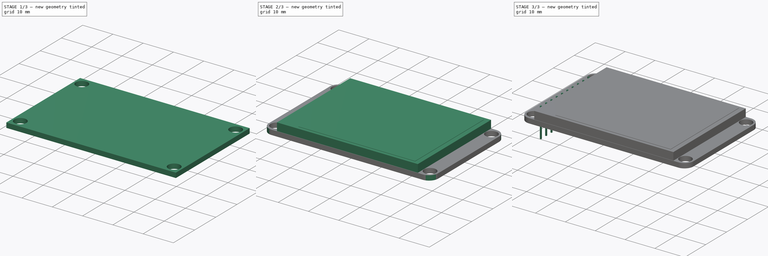
[diagram: build sequence overview — one tinted view per stage of 3, left to right]
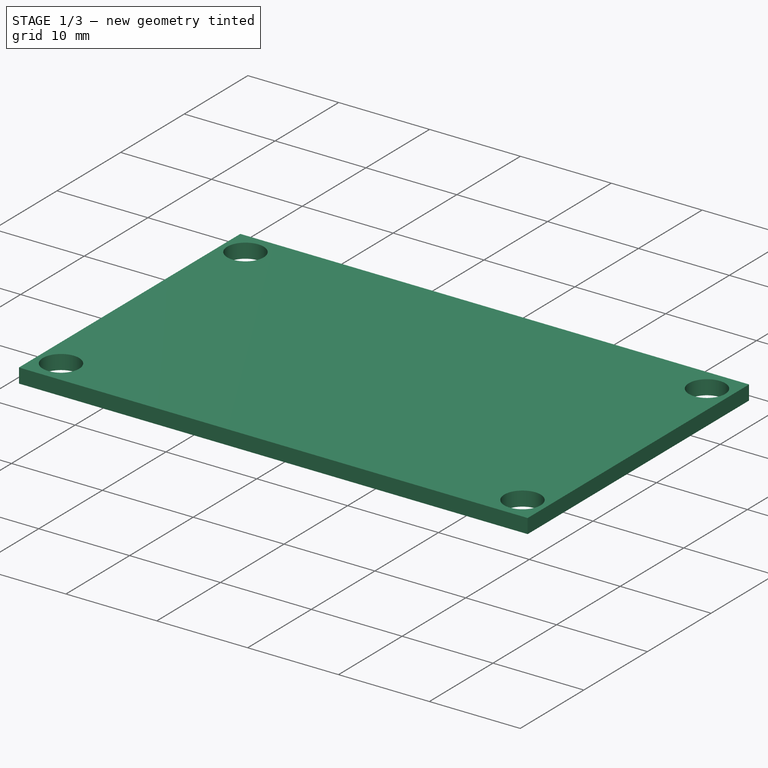
[diagram: stage 1 of 3 — iso view after this stage's code; geometry added in this stage tinted green]
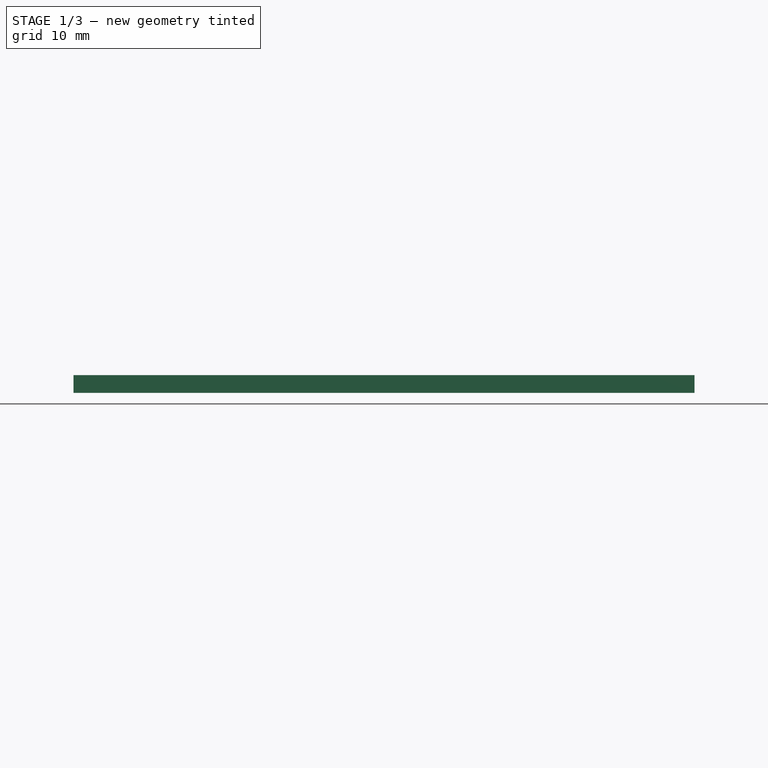
[diagram: stage 1 of 3 — front view after this stage's code; geometry added in this stage tinted green]
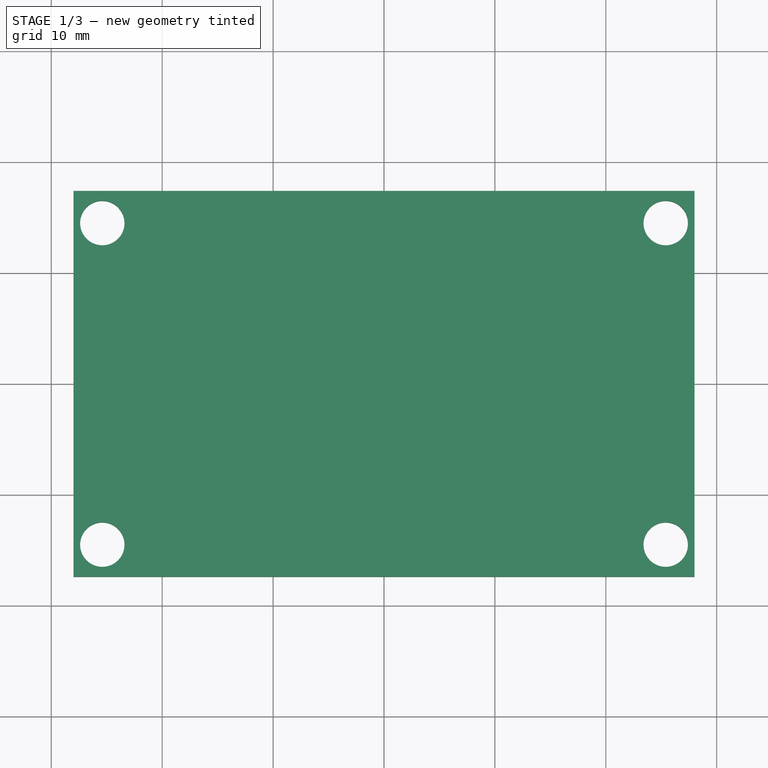
[diagram: stage 1 of 3 — top view after this stage's code; geometry added in this stage tinted green]
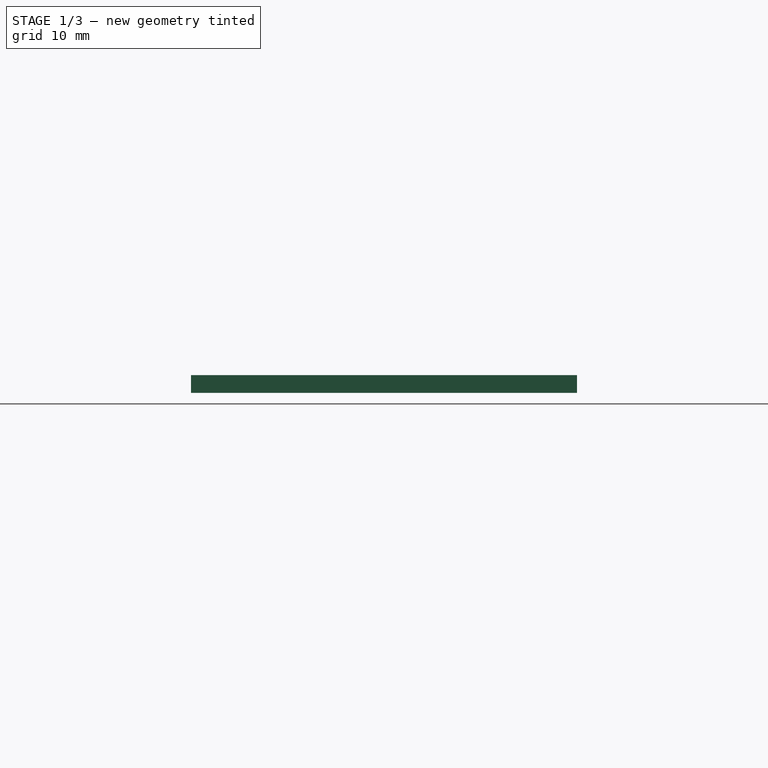
[diagram: stage 1 of 3 — right view after this stage's code; geometry added in this stage tinted green]
FCSTD DOCUMENT  (FreeCAD 0.16R6692 (Git))
Label: LCD_TFT2
License: All rights reserved
LicenseURL: http://en.wikipedia.org/wiki/All_rights_reserved
objects: Sketcher::SketchObject×6, PartDesign::Pad×5, PartDesign::Pocket×1, PartDesign::Fillet×1
note: 19 computed .brp shape members not serialized (recipe doc carries the construction recipe); baked Part::Feature solids carry a one-line shape summary decoded from their .brp

FEATURE [Sketcher::SketchObject] Sketch
  sketch-geometry (4):
    g0: LineSegment StartX=-28 StartY=17.4 StartZ=0 EndX=28 EndY=17.4 EndZ=0
    g1: LineSegment StartX=28 StartY=17.4 StartZ=0 EndX=28 EndY=-17.4 EndZ=0
    g2: LineSegment StartX=28 StartY=-17.4 StartZ=0 EndX=-28 EndY=-17.4 EndZ=0
    g3: LineSegment StartX=-28 StartY=-17.4 StartZ=0 EndX=-28 EndY=17.4 EndZ=0
  constraints (12):
    c: Coincident(g0,g1)
    c: Coincident(g1,g2)
    c: Coincident(g2,g3)
    c: Coincident(g3,g0)
    c: Horizontal(g0)
    c: Horizontal(g2)
    c: Vertical(g1)
    c: Vertical(g3)
    c: DistanceX(g0,g0) = 56
    c: DistanceY(g3,g3) = 34.8
    c: Symmetric(g0,g0,g-2)
    c: Symmetric(g0,g2,g-1)
FEATURE [PartDesign::Pad] Pad
  Length = 1.6
  Length2 = 100
  Sketch = -> Sketch
  Type = 0
FEATURE [PartDesign::Pocket] Pocket
  Length = 5
  Sketch = -> Sketch003
  Type = 1
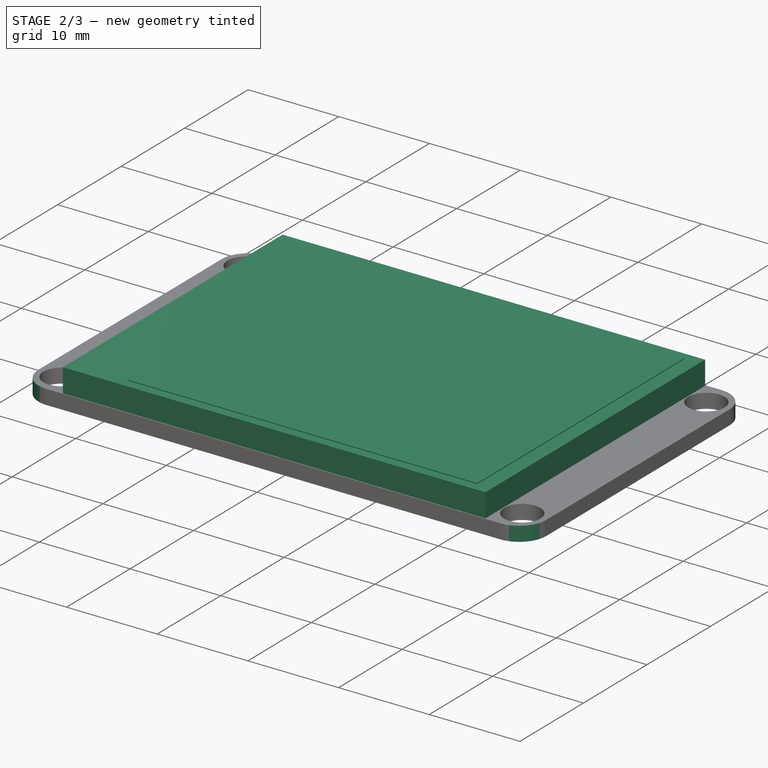
[diagram: stage 2 of 3 — iso view after this stage's code; geometry added in this stage tinted green]
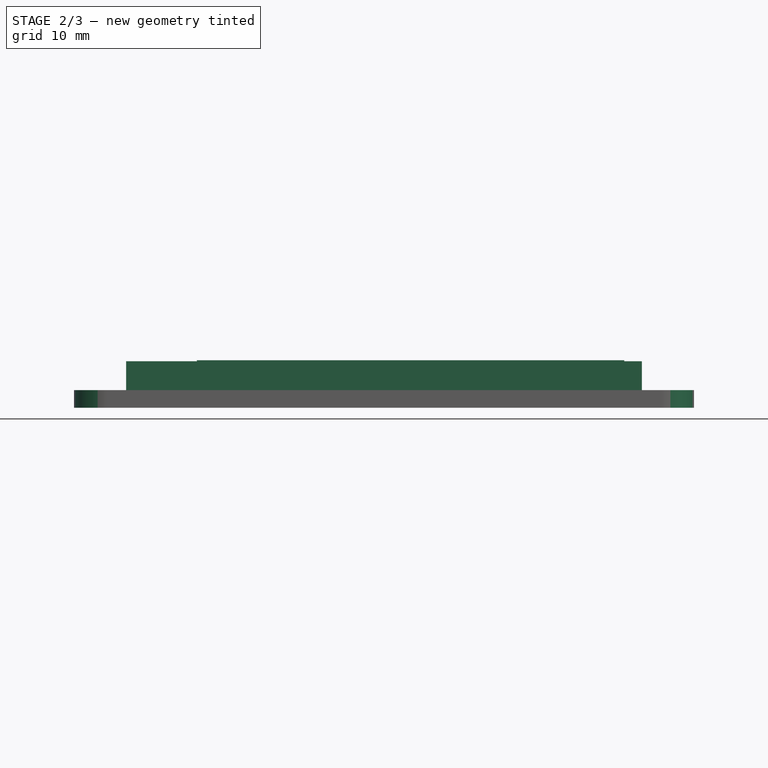
[diagram: stage 2 of 3 — front view after this stage's code; geometry added in this stage tinted green]
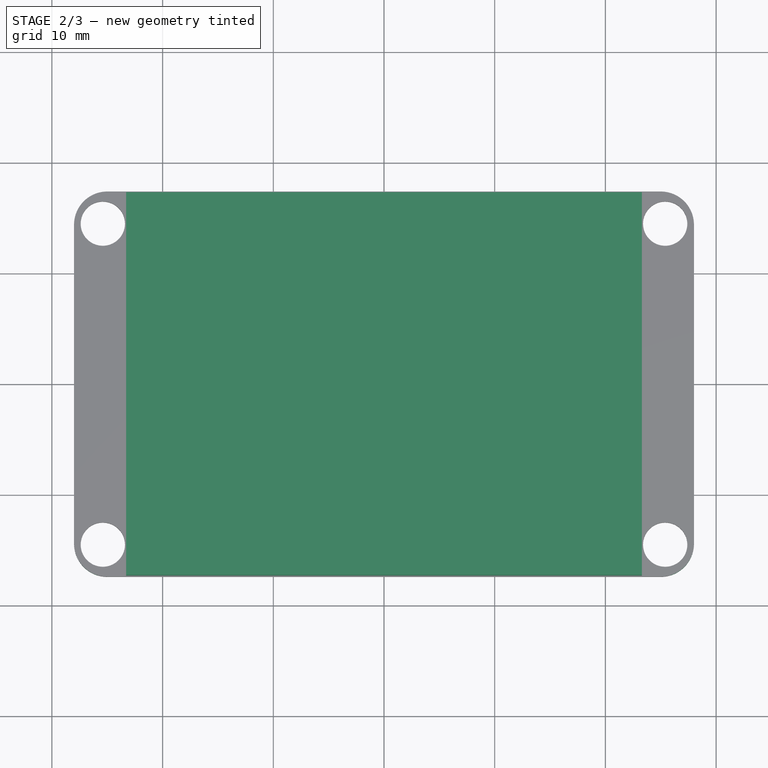
[diagram: stage 2 of 3 — top view after this stage's code; geometry added in this stage tinted green]
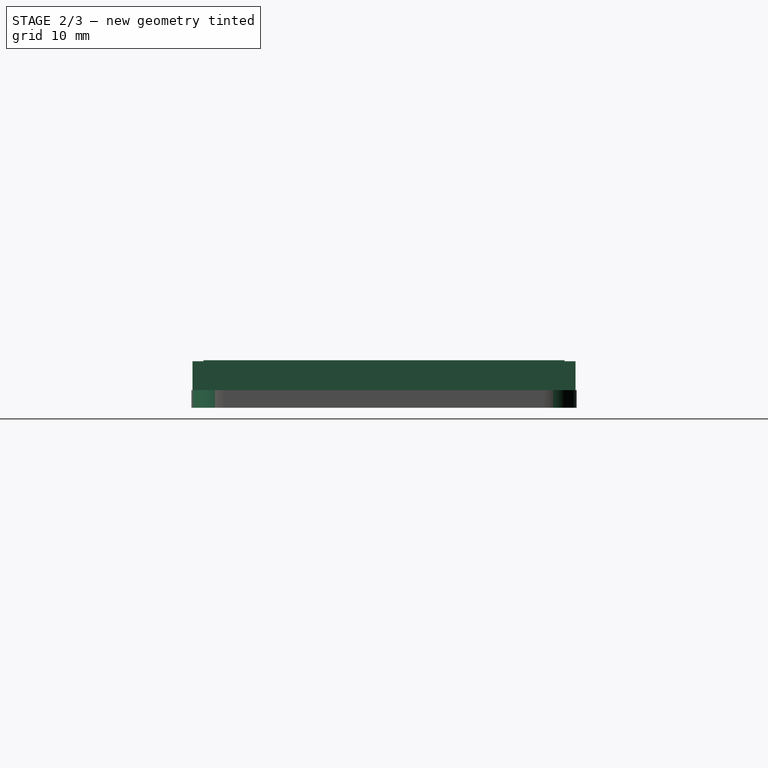
[diagram: stage 2 of 3 — right view after this stage's code; geometry added in this stage tinted green]
FEATURE [Sketcher::SketchObject] Sketch006
  Placement = pos=(0,0,1.6) rot=(0,0,1;0rad)
  sketch-geometry (4):
    g0: LineSegment StartX=-23.3 StartY=17.3 StartZ=0 EndX=23.3 EndY=17.3 EndZ=0
    g1: LineSegment StartX=23.3 StartY=17.3 StartZ=0 EndX=23.3 EndY=-17.3 EndZ=0
    g2: LineSegment StartX=23.3 StartY=-17.3 StartZ=0 EndX=-23.3 EndY=-17.3 EndZ=0
    g3: LineSegment StartX=-23.3 StartY=-17.3 StartZ=0 EndX=-23.3 EndY=17.3 EndZ=0
  constraints (12):
    c: Coincident(g0,g1)
    c: Coincident(g1,g2)
    c: Coincident(g2,g3)
    c: Coincident(g3,g0)
    c: Horizontal(g0)
    c: Horizontal(g2)
    c: Vertical(g1)
    c: Vertical(g3)
    c: DistanceX(g0,g0) = 46.6
    c: DistanceY(g3,g3) = 34.6
    c: Symmetric(g0,g0,g-2)
    c: Symmetric(g0,g2,g-1)
FEATURE [PartDesign::Pad] Pad005
  Length = 2.6
  Length2 = 100
  Placement = pos=(0,0,1.6) rot=(0,0,1;0rad)
  Sketch = -> Sketch006
  Type = 0
FEATURE [Sketcher::SketchObject] Sketch007
  Placement = pos=(0,0,4.2) rot=(0,0,1;0rad)
  sketch-geometry (4):
    g0: LineSegment StartX=-16.9 StartY=16.3 StartZ=0 EndX=21.7 EndY=16.3 EndZ=0
    g1: LineSegment StartX=21.7 StartY=16.3 StartZ=0 EndX=21.7 EndY=-16.3 EndZ=0
    g2: LineSegment StartX=21.7 StartY=-16.3 StartZ=0 EndX=-16.9 EndY=-16.3 EndZ=0
    g3: LineSegment StartX=-16.9 StartY=-16.3 StartZ=0 EndX=-16.9 EndY=16.3 EndZ=0
  constraints (12):
    c: Coincident(g0,g1)
    c: Coincident(g1,g2)
    c: Coincident(g2,g3)
    c: Coincident(g3,g0)
    c: Horizontal(g0)
    c: Horizontal(g2)
    c: Vertical(g1)
    c: Vertical(g3)
    c: DistanceX(g0,g0) = 38.6
    c: DistanceY(g3,g3) = 32.6
    c: Symmetric(g0,g2,g-1)
    c: DistanceX(g-1,g0) = 21.7
FEATURE [PartDesign::Pad] Pad006
  Length = 0.1
  Length2 = 100
  Placement = pos=(0,0,4.2) rot=(0,0,1;0rad)
  Sketch = -> Sketch007
  Type = 0
FEATURE [PartDesign::Fillet] Fillet
  Base = -> Pocket [Edge5,Edge8,Edge2,Edge1]
  Radius = 3
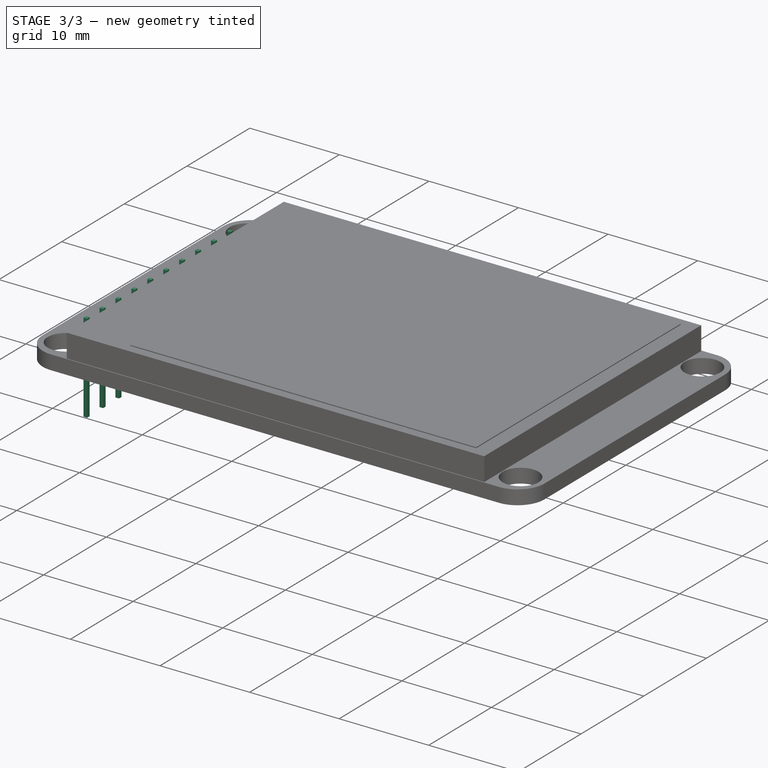
[diagram: stage 3 of 3 — iso view after this stage's code; geometry added in this stage tinted green]
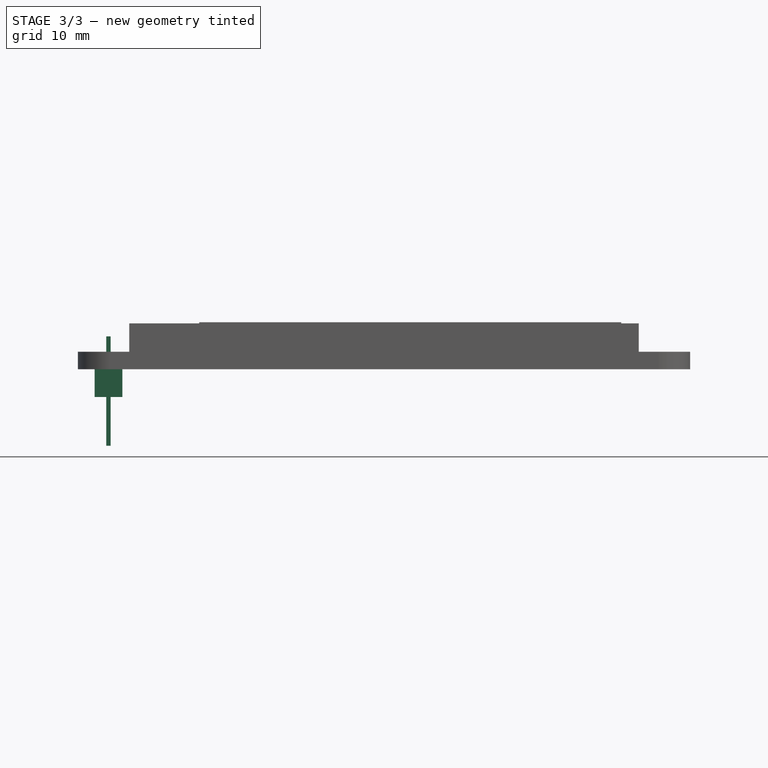
[diagram: stage 3 of 3 — front view after this stage's code; geometry added in this stage tinted green]
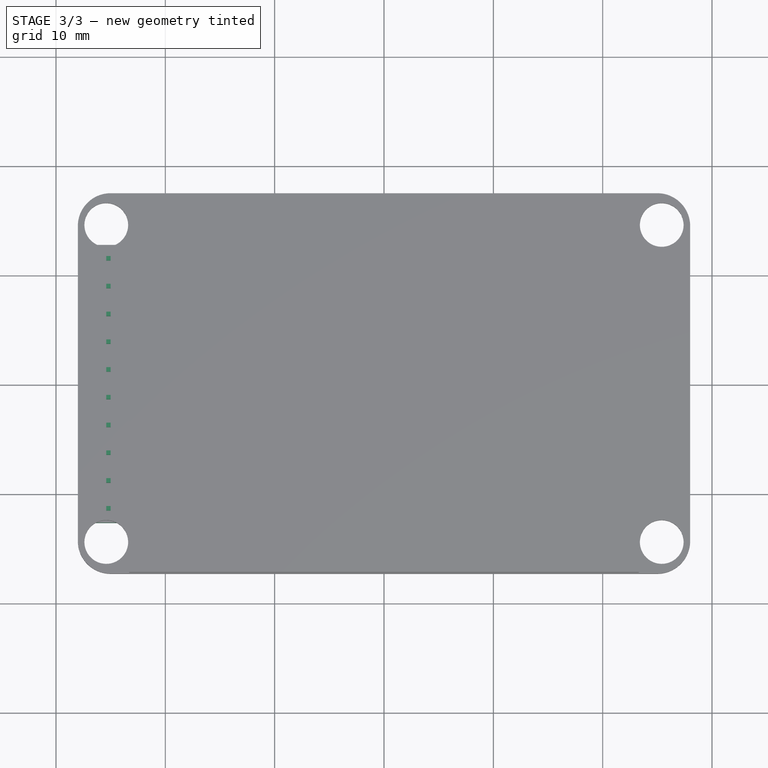
[diagram: stage 3 of 3 — top view after this stage's code; geometry added in this stage tinted green]
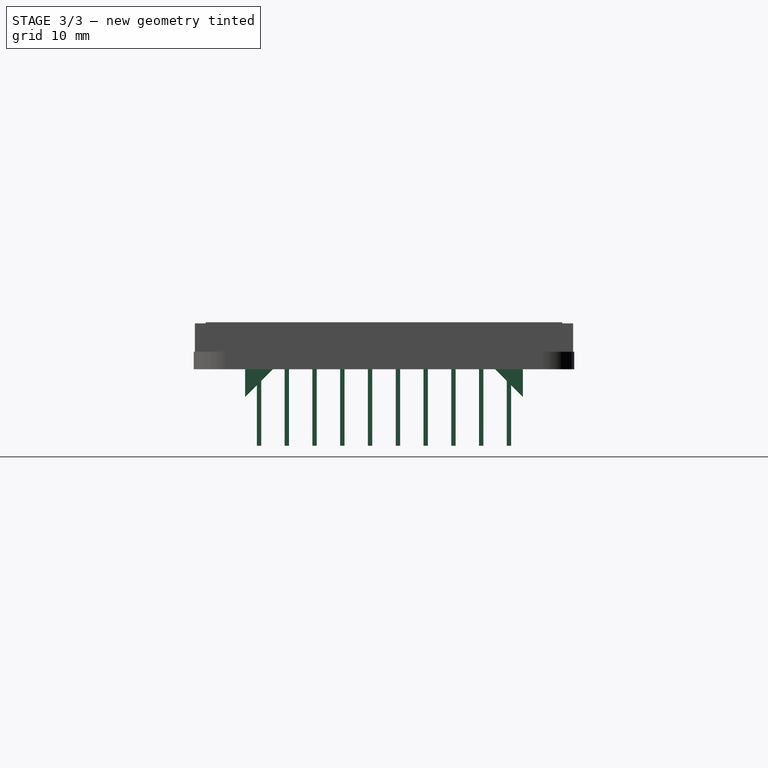
[diagram: stage 3 of 3 — right view after this stage's code; geometry added in this stage tinted green]
FEATURE [Sketcher::SketchObject] Sketch003
  Placement = pos=(0,0,1.6) rot=(0,0,1;0rad)
  Support = -> Pad [Face6]
  sketch-geometry (4):
    g0: Circle CenterX=-25.4 CenterY=-14.5 CenterZ=0 NormalX=0 NormalY=0 NormalZ=1 Radius=2
    g1: Circle CenterX=-25.4 CenterY=14.5 CenterZ=0 NormalX=0 NormalY=0 NormalZ=1 Radius=2
    g2: Circle CenterX=25.4 CenterY=14.5 CenterZ=0 NormalX=0 NormalY=0 NormalZ=1 Radius=2
    g3: Circle CenterX=25.4 CenterY=-14.5 CenterZ=0 NormalX=0 NormalY=0 NormalZ=1 Radius=2
  constraints (10):
    c: Radius(g0) = 2
    c: Equal(g0,g1)
    c: Equal(g1,g2)
    c: Equal(g2,g3)
    c: DistanceX(g1,g2) = 50.8
    c: DistanceY(g0,g1) = 29
    c: DistanceX(g0,g3) = 50.8
    c: DistanceY(g3,g2) = 29
    c: Symmetric(g1,g2,g-2)
    c: Symmetric(g1,g0,g-1)
FEATURE [Sketcher::SketchObject] Sketch004
  Placement = pos=(0,0,3) rot=(0,0,1;0rad)
  sketch-geometry (40):
    g0: LineSegment StartX=-25.4 StartY=1.47 StartZ=0 EndX=-25 EndY=1.47 EndZ=0
    g1: LineSegment StartX=-25 StartY=1.47 StartZ=0 EndX=-25 EndY=1.07 EndZ=0
    g2: LineSegment StartX=-25 StartY=1.07 StartZ=0 EndX=-25.4 EndY=1.07 EndZ=0
    g3: LineSegment StartX=-25.4 StartY=1.07 StartZ=0 EndX=-25.4 EndY=1.47 EndZ=0
    g4: LineSegment StartX=-25.4 StartY=-1.07 StartZ=0 EndX=-25 EndY=-1.07 EndZ=0
    g5: LineSegment StartX=-25 StartY=-1.07 StartZ=0 EndX=-25 EndY=-1.47 EndZ=0
    g6: LineSegment StartX=-25 StartY=-1.47 StartZ=0 EndX=-25.4 EndY=-1.47 EndZ=0
    g7: LineSegment StartX=-25.4 StartY=-1.47 StartZ=0 EndX=-25.4 EndY=-1.07 EndZ=0
    g8: LineSegment StartX=-25.4 StartY=-3.61 StartZ=0 EndX=-25 EndY=-3.61 EndZ=0
    g9: LineSegment StartX=-25 StartY=-3.61 StartZ=0 EndX=-25 EndY=-4.01 EndZ=0
    g10: LineSegment StartX=-25 StartY=-4.01 StartZ=0 EndX=-25.4 EndY=-4.01 EndZ=0
    g11: LineSegment StartX=-25.4 StartY=-4.01 StartZ=0 EndX=-25.4 EndY=-3.61 EndZ=0
    g12: LineSegment StartX=-25.4 StartY=4.01 StartZ=0 EndX=-25 EndY=4.01 EndZ=0
    g13: LineSegment StartX=-25 StartY=4.01 StartZ=0 EndX=-25 EndY=3.61 EndZ=0
    g14: LineSegment StartX=-25 StartY=3.61 StartZ=0 EndX=-25.4 EndY=3.61 EndZ=0
    g15: LineSegment StartX=-25.4 StartY=3.61 StartZ=0 EndX=-25.4 EndY=4.01 EndZ=0
    g16: LineSegment StartX=-25.4 StartY=6.55 StartZ=0 EndX=-25 EndY=6.55 EndZ=0
    g17: LineSegment StartX=-25 StartY=6.55 StartZ=0 EndX=-25 EndY=6.15 EndZ=0
    g18: LineSegment StartX=-25 StartY=6.15 StartZ=0 EndX=-25.4 EndY=6.15 EndZ=0
    g19: LineSegment StartX=-25.4 StartY=6.15 StartZ=0 EndX=-25.4 EndY=6.55 EndZ=0
    g20: LineSegment StartX=-25.4 StartY=-6.15 StartZ=0 EndX=-25 EndY=-6.15 EndZ=0
    g21: LineSegment StartX=-25 StartY=-6.15 StartZ=0 EndX=-25 EndY=-6.55 EndZ=0
    g22: LineSegment StartX=-25 StartY=-6.55 StartZ=0 EndX=-25.4 EndY=-6.55 EndZ=0
    g23: LineSegment StartX=-25.4 StartY=-6.55 StartZ=0 EndX=-25.4 EndY=-6.15 EndZ=0
    g24: LineSegment StartX=-25.4 StartY=-8.69 StartZ=0 EndX=-25 EndY=-8.69 EndZ=0
    g25: LineSegment StartX=-25 StartY=-8.69 StartZ=0 EndX=-25 EndY=-9.09 EndZ=0
    g26: LineSegment StartX=-25 StartY=-9.09 StartZ=0 EndX=-25.4 EndY=-9.09 EndZ=0
    g27: LineSegment StartX=-25.4 StartY=-9.09 StartZ=0 EndX=-25.4 EndY=-8.69 EndZ=0
    g28: LineSegment StartX=-25 StartY=8.69 StartZ=0 EndX=-25.4 EndY=8.69 EndZ=0
    g29: LineSegment StartX=-25.4 StartY=8.69 StartZ=0 EndX=-25.4 EndY=9.09 EndZ=0
    g30: LineSegment StartX=-25.4 StartY=9.09 StartZ=0 EndX=-25 EndY=9.09 EndZ=0
    g31: LineSegment StartX=-25 StartY=9.09 StartZ=0 EndX=-25 EndY=8.69 EndZ=0
    g32: LineSegment StartX=-25.4 StartY=11.63 StartZ=0 EndX=-25 EndY=11.63 EndZ=0
    g33: LineSegment StartX=-25 StartY=11.63 StartZ=0 EndX=-25 EndY=11.23 EndZ=0
    g34: LineSegment StartX=-25 StartY=11.23 StartZ=0 EndX=-25.4 EndY=11.23 EndZ=0
    g35: LineSegment StartX=-25.4 StartY=11.23 StartZ=0 EndX=-25.4 EndY=11.63 EndZ=0
    g36: LineSegment StartX=-25.4 StartY=-11.23 StartZ=0 EndX=-25 EndY=-11.23 EndZ=0
    g37: LineSegment StartX=-25 StartY=-11.23 StartZ=0 EndX=-25 EndY=-11.63 EndZ=0
    g38: LineSegment StartX=-25 StartY=-11.63 StartZ=0 EndX=-25.4 EndY=-11.63 EndZ=0
    g39: LineSegment StartX=-25.4 StartY=-11.63 StartZ=0 EndX=-25.4 EndY=-11.23 EndZ=0
  constraints (138):
    c: Coincident(g0,g1)
    c: Coincident(g1,g2)
    c: Coincident(g2,g3)
    c: Coincident(g3,g0)
    c: Horizontal(g0)
    c: Horizontal(g2)
    c: Vertical(g1)
    c: Vertical(g3)
    c: DistanceX(g0,g0) = 0.4
    c: DistanceY(g3,g3) = 0.4
    c: DistanceY(g-1,g0) = 1.47
    c: DistanceX(g1,g-1) = 25
    c: Coincident(g4,g5)
    c: Coincident(g5,g6)
    c: Coincident(g6,g7)
    c: Coincident(g7,g4)
    c: Horizontal(g4)
    c: Horizontal(g6)
    c: Vertical(g5)
    c: Vertical(g7)
    c: Coincident(g8,g9)
    c: Coincident(g9,g10)
    c: Coincident(g10,g11)
    c: Coincident(g11,g8)
    c: Horizontal(g8)
    c: Horizontal(g10)
    c: Vertical(g9)
    c: Vertical(g11)
    c: Coincident(g12,g13)
    c: Coincident(g13,g14)
    c: Coincident(g14,g15)
    c: Coincident(g15,g12)
    c: Horizontal(g12)
    c: Horizontal(g14)
    c: Vertical(g13)
    c: Vertical(g15)
    c: Coincident(g16,g17)
    c: Coincident(g17,g18)
    c: Coincident(g18,g19)
    c: Coincident(g19,g16)
    c: Horizontal(g16)
    c: Horizontal(g18)
    c: Vertical(g17)
    c: Vertical(g19)
    c: Coincident(g20,g21)
    c: Coincident(g21,g22)
    c: Coincident(g22,g23)
    c: Coincident(g23,g20)
    c: Horizontal(g20)
    c: Horizontal(g22)
    c: Vertical(g21)
    c: Vertical(g23)
    c: Coincident(g24,g25)
    c: Coincident(g25,g26)
    c: Coincident(g26,g27)
    c: Coincident(g27,g24)
    c: Horizontal(g24)
    c: Horizontal(g26)
    c: Vertical(g25)
    c: Vertical(g27)
    c: Coincident(g28,g29)
    c: Coincident(g29,g30)
    c: Coincident(g30,g31)
    c: Coincident(g31,g28)
    c: Horizontal(g28)
    c: Horizontal(g30)
    c: Vertical(g29)
    c: Vertical(g31)
    c: Coincident(g32,g33)
    c: Coincident(g33,g34)
    c: Coincident(g34,g35)
    c: Coincident(g35,g32)
    c: Horizontal(g32)
    c: Horizontal(g34)
    c: Vertical(g33)
    c: Vertical(g35)
    c: Coincident(g36,g37)
    c: Coincident(g37,g38)
    c: Coincident(g38,g39)
    c: Coincident(g39,g36)
    c: Horizontal(g36)
    c: Horizontal(g38)
    c: Vertical(g37)
    c: Vertical(g39)
    c: Equal(g26,g24)
    c: Equal(g24,g36)
    c: Equal(g36,g38)
    c: Equal(g38,g22)
    c: Equal(g22,g20)
    c: Equal(g20,g10)
    c: Equal(g10,g8)
    c: Equal(g8,g6)
    c: Equal(g6,g4)
    c: Equal(g4,g1)
    c: Equal(g0,g14)
    c: Equal(g14,g12)
    c: Equal(g12,g18)
    c: Equal(g18,g16)
    c: Equal(g16,g28)
    c: Equal(g28,g30)
    c: Equal(g30,g34)
    c: Equal(g34,g32)
    c: Equal(g35,g33)
    c: Equal(g33,g29)
    c: Equal(g29,g31)
    c: Equal(g31,g19)
    c: Equal(g19,g17)
    c: Equal(g17,g15)
    c: Equal(g15,g13)
    c: Equal(g13,g3)
    c: Equal(g1,g7)
    c: Equal(g7,g5)
    c: Equal(g5,g11)
    c: Equal(g11,g9)
    c: Equal(g9,g21)
    c: Equal(g21,g23)
    c: Equal(g23,g27)
    c: Equal(g27,g25)
    c: Equal(g25,g39)
    c: Equal(g39,g37)
    c: DistanceX(g13,g1) = 0
    c: DistanceX(g17,g13) = 0
    c: DistanceX(g28,g17) = 0
    c: DistanceX(g33,g28) = 0
    c: DistanceX(g5,g1) = 0
    c: DistanceX(g9,g5) = 0
    c: DistanceX(g21,g9) = 0
    c: DistanceX(g25,g21) = 0
    c: DistanceX(g25,g37) = 0
    c: DistanceY(g6,g2) = 2.54
    c: DistanceY(g10,g6) = 2.54
    c: DistanceY(g22,g10) = 2.54
    c: DistanceY(g26,g22) = 2.54
    c: DistanceY(g38,g26) = 2.54
    c: DistanceY(g0,g12) = 2.54
    c: DistanceY(g18,g28) = 2.54
    c: DistanceY(g28,g34) = 2.54
    c: DistanceY(g14,g18) = 2.54
FEATURE [PartDesign::Pad] Pad003
  Length = 10
  Length2 = 100
  Placement = pos=(0,0,3) rot=(0,0,1;0rad)
  Reversed = true
  Sketch = -> Sketch004
  Type = 0
FEATURE [Sketcher::SketchObject] Sketch005
  sketch-geometry (40):
    g0: LineSegment StartX=-26.47 StartY=2.54 StartZ=0 EndX=-23.93 EndY=2.54 EndZ=0
    g1: LineSegment StartX=-23.93 StartY=2.54 StartZ=0 EndX=-23.93 EndY=0 EndZ=0
    g2: LineSegment StartX=-23.93 StartY=0 StartZ=0 EndX=-26.47 EndY=0 EndZ=0
    g3: LineSegment StartX=-26.47 StartY=0 StartZ=0 EndX=-26.47 EndY=2.54 EndZ=0
    g4: LineSegment StartX=-26.47 StartY=5.08 StartZ=0 EndX=-23.93 EndY=5.08 EndZ=0
    g5: LineSegment StartX=-23.93 StartY=5.08 StartZ=0 EndX=-23.93 EndY=2.54 EndZ=0
    g6: LineSegment StartX=-23.93 StartY=2.54 StartZ=0 EndX=-26.47 EndY=2.54 EndZ=0
    g7: LineSegment StartX=-26.47 StartY=2.54 StartZ=0 EndX=-26.47 EndY=5.08 EndZ=0
    g8: LineSegment StartX=-26.47 StartY=7.62 StartZ=0 EndX=-23.93 EndY=7.62 EndZ=0
    g9: LineSegment StartX=-23.93 StartY=7.62 StartZ=0 EndX=-23.93 EndY=5.08 EndZ=0
    g10: LineSegment StartX=-23.93 StartY=5.08 StartZ=0 EndX=-26.47 EndY=5.08 EndZ=0
    g11: LineSegment StartX=-26.47 StartY=5.08 StartZ=0 EndX=-26.47 EndY=7.62 EndZ=0
    g12: LineSegment StartX=-26.47 StartY=10.16 StartZ=0 EndX=-23.93 EndY=10.16 EndZ=0
    g13: LineSegment StartX=-23.93 StartY=10.16 StartZ=0 EndX=-23.93 EndY=7.62 EndZ=0
    g14: LineSegment StartX=-23.93 StartY=7.62 StartZ=0 EndX=-26.47 EndY=7.62 EndZ=0
    g15: LineSegment StartX=-26.47 StartY=7.62 StartZ=0 EndX=-26.47 EndY=10.16 EndZ=0
    g16: LineSegment StartX=-26.47 StartY=12.7 StartZ=0 EndX=-23.93 EndY=12.7 EndZ=0
    g17: LineSegment StartX=-23.93 StartY=12.7 StartZ=0 EndX=-23.93 EndY=10.16 EndZ=0
    g18: LineSegment StartX=-23.93 StartY=10.16 StartZ=0 EndX=-26.47 EndY=10.16 EndZ=0
    g19: LineSegment StartX=-26.47 StartY=10.16 StartZ=0 EndX=-26.47 EndY=12.7 EndZ=0
    g20: LineSegment StartX=-26.47 StartY=0 StartZ=0 EndX=-23.93 EndY=0 EndZ=0
    g21: LineSegment StartX=-23.93 StartY=0 StartZ=0 EndX=-23.93 EndY=-2.54 EndZ=0
    g22: LineSegment StartX=-23.93 StartY=-2.54 StartZ=0 EndX=-26.47 EndY=-2.54 EndZ=0
    g23: LineSegment StartX=-26.47 StartY=-2.54 StartZ=0 EndX=-26.47 EndY=0 EndZ=0
    g24: LineSegment StartX=-26.47 StartY=-2.54 StartZ=0 EndX=-23.93 EndY=-2.54 EndZ=0
    g25: LineSegment StartX=-23.93 StartY=-2.54 StartZ=0 EndX=-23.93 EndY=-5.08 EndZ=0
    g26: LineSegment StartX=-23.93 StartY=-5.08 StartZ=0 EndX=-26.47 EndY=-5.08 EndZ=0
    g27: LineSegment StartX=-26.47 StartY=-5.08 StartZ=0 EndX=-26.47 EndY=-2.54 EndZ=0
    g28: LineSegment StartX=-26.47 StartY=-5.08 StartZ=0 EndX=-23.93 EndY=-5.08 EndZ=0
    g29: LineSegment StartX=-23.93 StartY=-5.08 StartZ=0 EndX=-23.93 EndY=-7.62 EndZ=0
    g30: LineSegment StartX=-23.93 StartY=-7.62 StartZ=0 EndX=-26.47 EndY=-7.62 EndZ=0
    g31: LineSegment StartX=-26.47 StartY=-7.62 StartZ=0 EndX=-26.47 EndY=-5.08 EndZ=0
    g32: LineSegment StartX=-26.47 StartY=-7.62 StartZ=0 EndX=-23.93 EndY=-7.62 EndZ=0
    g33: LineSegment StartX=-23.93 StartY=-7.62 StartZ=0 EndX=-23.93 EndY=-10.16 EndZ=0
    g34: LineSegment StartX=-23.93 StartY=-10.16 StartZ=0 EndX=-26.47 EndY=-10.16 EndZ=0
    g35: LineSegment StartX=-26.47 StartY=-10.16 StartZ=0 EndX=-26.47 EndY=-7.62 EndZ=0
    g36: LineSegment StartX=-26.47 StartY=-10.16 StartZ=0 EndX=-23.93 EndY=-10.16 EndZ=0
    g37: LineSegment StartX=-23.93 StartY=-10.16 StartZ=0 EndX=-23.93 EndY=-12.7 EndZ=0
    g38: LineSegment StartX=-23.93 StartY=-12.7 StartZ=0 EndX=-26.47 EndY=-12.7 EndZ=0
    g39: LineSegment StartX=-26.47 StartY=-12.7 StartZ=0 EndX=-26.47 EndY=-10.16 EndZ=0
  constraints (113):
    c: Coincident(g0,g1)
    c: Coincident(g1,g2)
    c: Coincident(g2,g3)
    c: Coincident(g3,g0)
    c: Horizontal(g0)
    c: Horizontal(g2)
    c: Vertical(g1)
    c: Vertical(g3)
    c: DistanceX(g0,g0) = 2.54
    c: DistanceY(g3,g3) = 2.54
    c: DistanceY(g1,g-1) = 0
    c: DistanceX(g1,g-1) = 23.93
    c: Coincident(g4,g5)
    c: Coincident(g5,g6)
    c: Coincident(g6,g7)
    c: Coincident(g7,g4)
    c: Horizontal(g4)
    c: Horizontal(g6)
    c: Vertical(g5)
    c: Vertical(g7)
    c: Coincident(g8,g9)
    c: Coincident(g9,g10)
    c: Coincident(g10,g11)
    c: Coincident(g11,g8)
    c: Horizontal(g8)
    c: Horizontal(g10)
    c: Vertical(g9)
    c: Vertical(g11)
    c: Coincident(g12,g13)
    c: Coincident(g13,g14)
    c: Coincident(g14,g15)
    c: Coincident(g15,g12)
    c: Horizontal(g12)
    c: Horizontal(g14)
    c: Vertical(g13)
    c: Vertical(g15)
    c: Coincident(g16,g17)
    c: Coincident(g17,g18)
    c: Coincident(g18,g19)
    c: Coincident(g19,g16)
    c: Horizontal(g16)
    c: Horizontal(g18)
    c: Vertical(g17)
    c: Vertical(g19)
    c: Coincident(g20,g21)
    c: Coincident(g21,g22)
    c: Coincident(g22,g23)
    c: Coincident(g23,g20)
    c: Horizontal(g20)
    c: Horizontal(g22)
    c: Vertical(g21)
    c: Vertical(g23)
    c: Coincident(g24,g25)
    c: Coincident(g25,g26)
    c: Coincident(g26,g27)
    c: Coincident(g27,g24)
    c: Horizontal(g24)
    c: Horizontal(g26)
    c: Vertical(g25)
    c: Vertical(g27)
    c: Coincident(g28,g29)
    c: Coincident(g29,g30)
    c: Coincident(g30,g31)
    c: Coincident(g31,g28)
    c: Horizontal(g28)
    c: Horizontal(g30)
    c: Vertical(g29)
    c: Vertical(g31)
    c: Coincident(g32,g33)
    c: Coincident(g33,g34)
    c: Coincident(g34,g35)
    c: Coincident(g35,g32)
    c: Horizontal(g32)
    c: Horizontal(g34)
    c: Vertical(g33)
    c: Vertical(g35)
    c: Coincident(g36,g37)
    c: Coincident(g37,g38)
    c: Coincident(g38,g39)
    c: Coincident(g39,g36)
    c: Horizontal(g36)
    c: Horizontal(g38)
    c: Vertical(g37)
    c: Vertical(g39)
    c: Equal(g38,g34)
    c: Equal(g34,g30)
    c: Equal(g30,g26)
    c: Equal(g26,g22)
    c: Equal(g22,g6)
    c: Equal(g6,g10)
    c: Equal(g10,g14)
    c: Equal(g14,g18)
    c: Equal(g18,g0)
    c: Equal(g19,g15)
    c: Equal(g15,g11)
    c: Equal(g11,g7)
    c: Equal(g7,g3)
    c: Equal(g3,g23)
    c: Equal(g23,g27)
    c: Equal(g27,g31)
    c: Equal(g31,g35)
    c: Equal(g35,g39)
    c: Coincident(g18,g12)
    c: Coincident(g14,g8)
    c: Coincident(g10,g4)
    c: DistanceX(g6,g0) = 0
    c: Coincident(g6,g0)
    c: Coincident(g36,g33)
    c: Coincident(g29,g32)
    c: Coincident(g25,g28)
    c: Coincident(g21,g24)
    c: DistanceX(g20,g2) = 0
    c: Coincident(g2,g20)
FEATURE [PartDesign::Pad] Pad004
  Length = 2.54
  Length2 = 100
  Reversed = true
  Sketch = -> Sketch005
  Type = 0
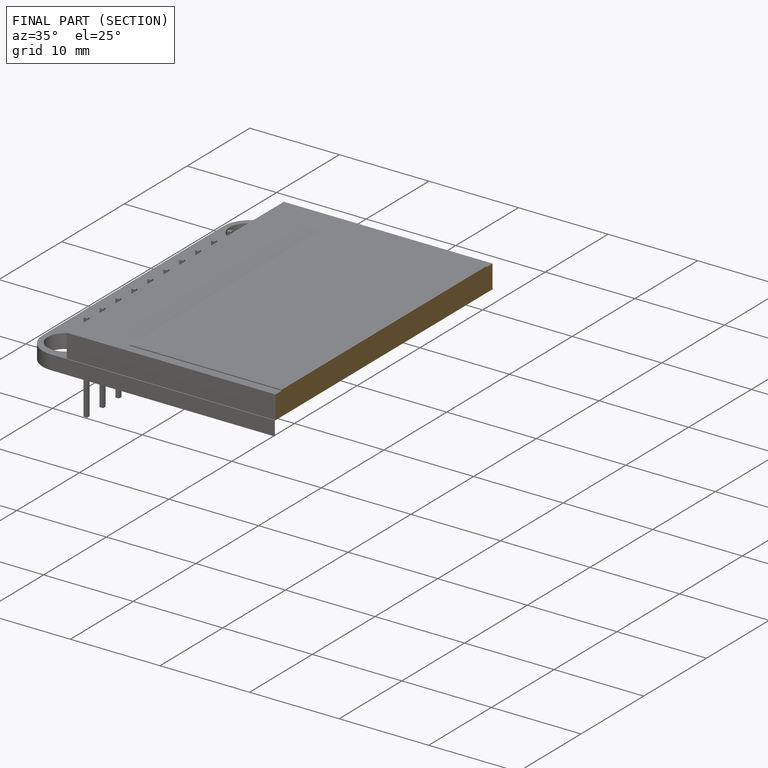
[diagram: finished part — half-section view (interior)]
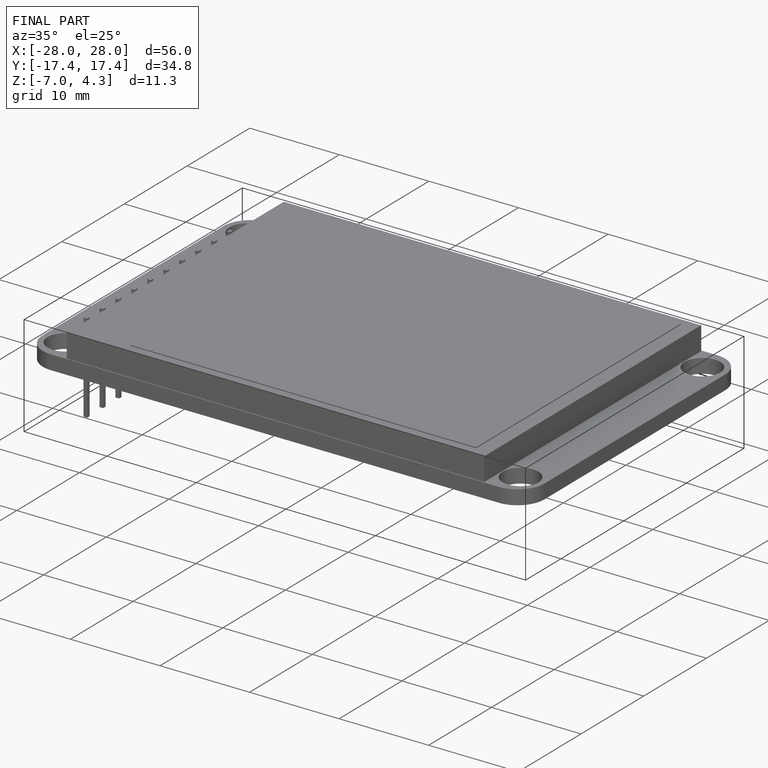
[diagram: finished part — iso view with bounding-box wireframe]
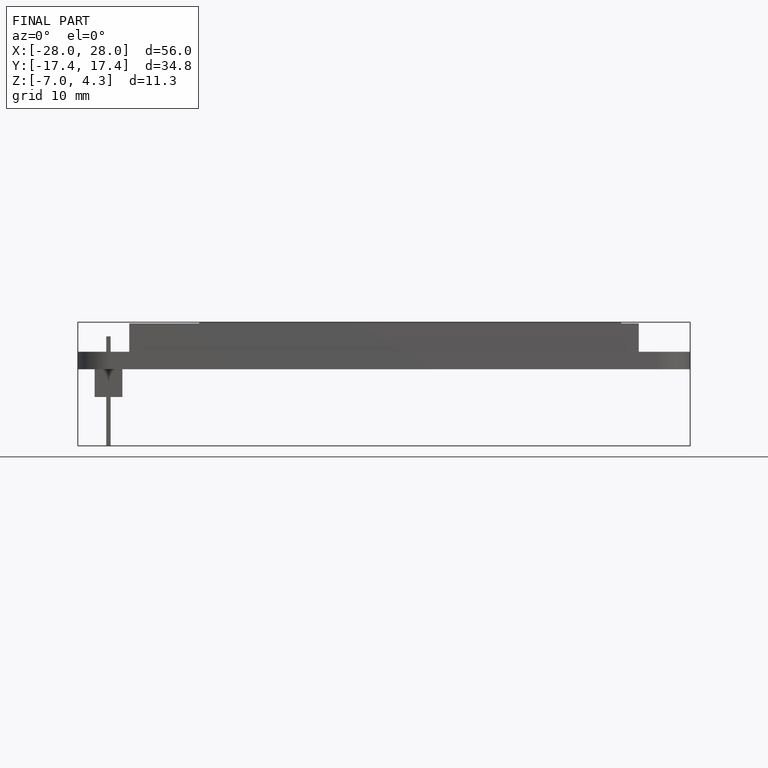
[diagram: finished part — front view with bounding-box wireframe]
